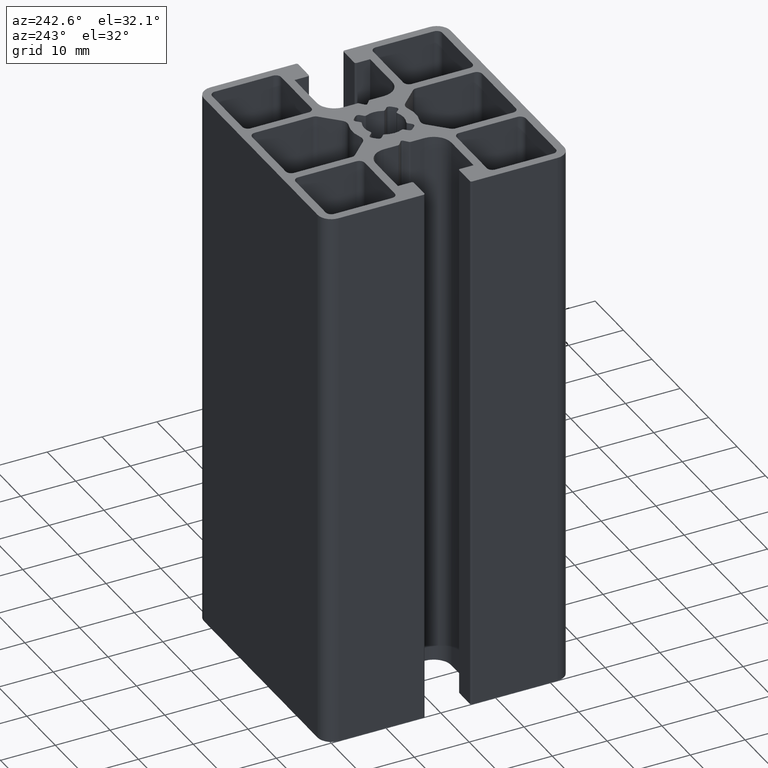
[diagram: clean part render]
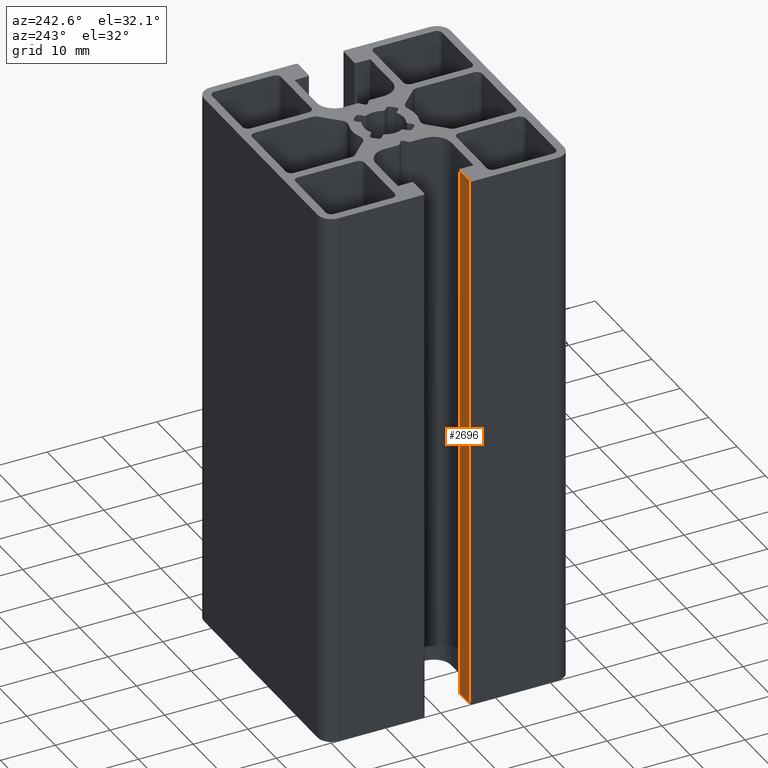
[diagram: same view with one face highlighted and labeled with its STEP entity id]
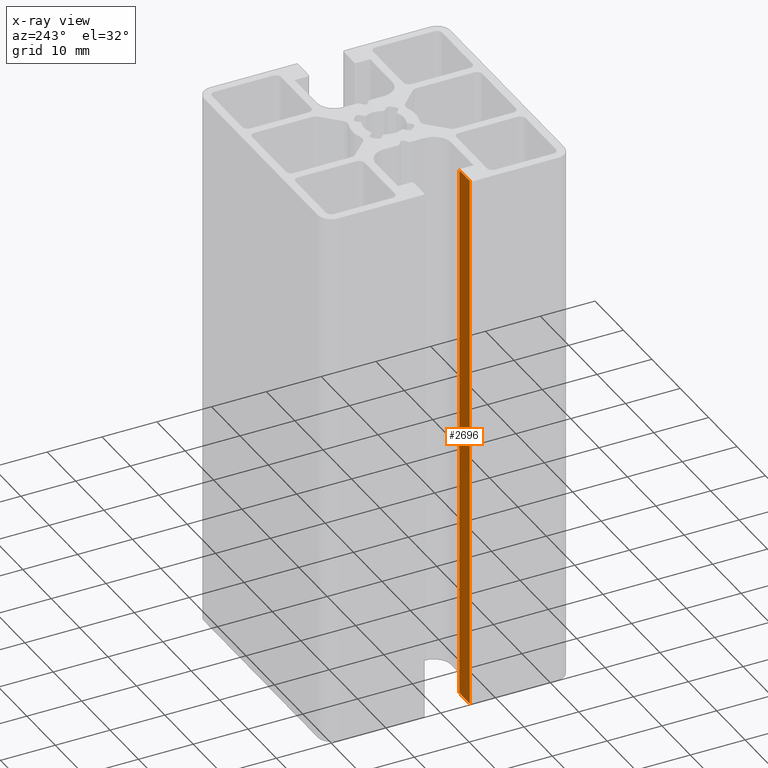
[diagram: x-ray of the same camera — body ghosted, the highlighted face saturated]
A machine part, auxiliary view. The second image highlights one B-rep face of the part: STEP entity #2696.
The next image is the same camera in x-ray: the body ghosted, the highlighted face saturated — about 0% of this face is hidden behind the body in this view.
In plain terms, the highlighted planar face has unit normal (0, -1, 0).
Its self-contained STEP definition (entity closure, byte-faithful):
#59=PLANE('',#2934);
#170=FACE_OUTER_BOUND('',#308,.T.);
#308=EDGE_LOOP('',(#2041,#2042,#2043,#2044));
#520=LINE('',#4362,#776);
#521=LINE('',#4365,#777);
#522=LINE('',#4367,#778);
#523=LINE('',#4368,#779);
#776=VECTOR('',#3542,100.);
#777=VECTOR('',#3545,3.70000000000001);
#778=VECTOR('',#3546,3.70000000000001);
#779=VECTOR('',#3547,100.);
#1203=VERTEX_POINT('',#4358);
#1204=VERTEX_POINT('',#4360);
#1205=VERTEX_POINT('',#4364);
#1206=VERTEX_POINT('',#4366);
#1554=EDGE_CURVE('',#1204,#1203,#520,.T.);
#1555=EDGE_CURVE('',#1203,#1205,#521,.T.);
#1556=EDGE_CURVE('',#1206,#1204,#522,.T.);
#1557=EDGE_CURVE('',#1206,#1205,#523,.T.);
#2041=ORIENTED_EDGE('',*,*,#1555,.F.);
#2042=ORIENTED_EDGE('',*,*,#1554,.F.);
#2043=ORIENTED_EDGE('',*,*,#1556,.F.);
#2044=ORIENTED_EDGE('',*,*,#1557,.T.);
#2696=ADVANCED_FACE('',(#170),#59,.F.);
#2934=AXIS2_PLACEMENT_3D('',#4363,#3543,#3544);
#3542=DIRECTION('',(0.,0.,1.));
#3543=DIRECTION('center_axis',(8.24115550576483E-13,-1.,0.));
#3544=DIRECTION('ref_axis',(1.,8.24140755639746E-13,0.));
#3545=DIRECTION('',(-1.,-8.24115550576483E-13,0.));
#3546=DIRECTION('',(1.,8.24115550576483E-13,0.));
#3547=DIRECTION('',(0.,0.,1.));
#4358=CARTESIAN_POINT('',(-18.5,-4.15,100.));
#4360=CARTESIAN_POINT('',(-18.5,-4.15,0.));
#4362=CARTESIAN_POINT('',(-18.5,-4.15,0.));
#4363=CARTESIAN_POINT('Origin',(-22.2,-4.15000000000305,0.));
#4364=CARTESIAN_POINT('',(-22.2,-4.15000000000305,100.));
#4365=CARTESIAN_POINT('',(-11.0999999999983,-4.1499999999939,100.));
#4366=CARTESIAN_POINT('',(-22.2,-4.15000000000305,0.));
#4367=CARTESIAN_POINT('',(-11.0999999999983,-4.1499999999939,0.));
#4368=CARTESIAN_POINT('',(-22.2,-4.15000000000305,0.));